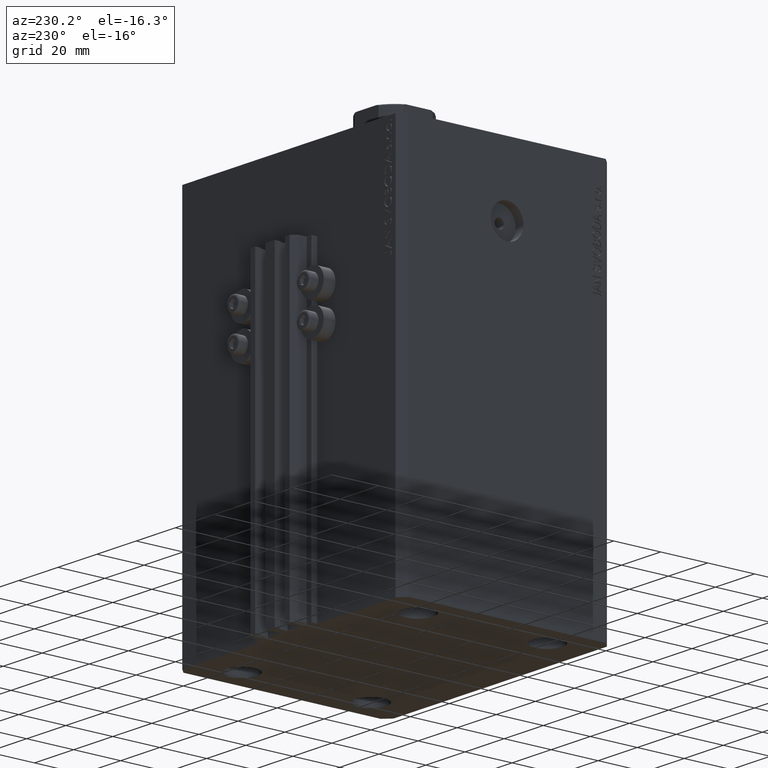
[diagram: clean part render]
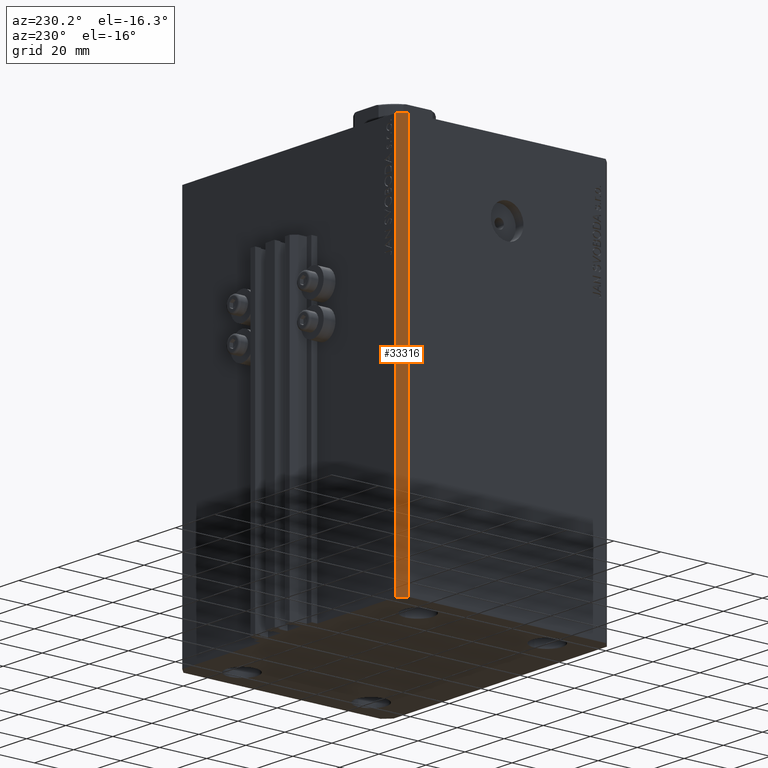
[diagram: same view with one face highlighted and labeled with its STEP entity id]
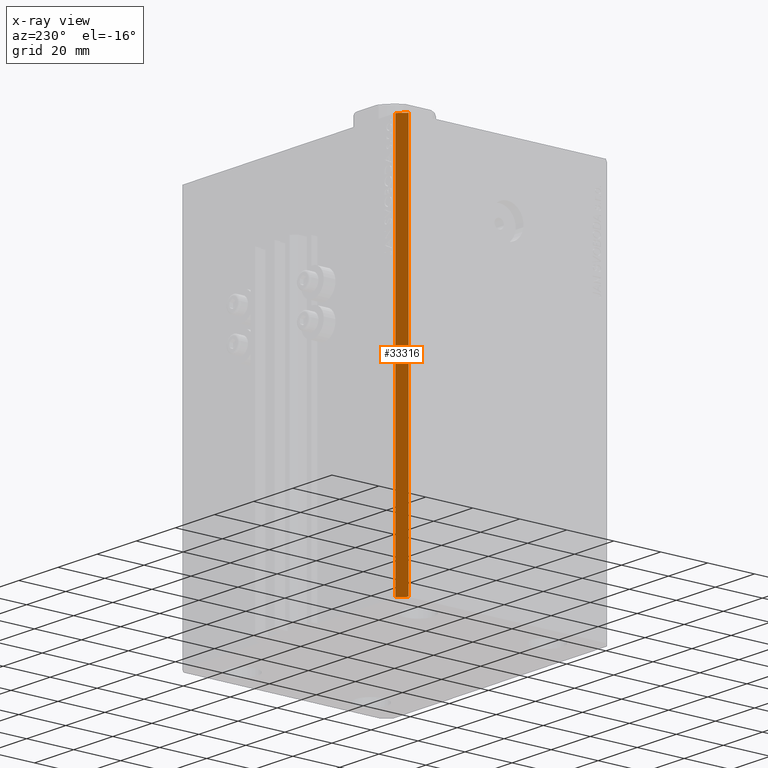
[diagram: x-ray of the same camera — body ghosted, the highlighted face saturated]
A machine part, auxiliary view. The second image highlights one B-rep face of the part: STEP entity #33316.
The next image is the same camera in x-ray: the body ghosted, the highlighted face saturated — about 0% of this face is hidden behind the body in this view.
In plain terms, the highlighted planar face has unit normal (-0.7071, 0.7071, 0).
Its self-contained STEP definition (entity closure, byte-faithful):
#88 = LINE ( 'NONE', #6315, #33269 ) ;
#3546 = CARTESIAN_POINT ( 'NONE',  ( -57.49999999999998579, 42.00000000000000711, -165.0000000000000000 ) ) ;
#4259 = VECTOR ( 'NONE', #22102, 1000.000000000000000 ) ;
#6315 = CARTESIAN_POINT ( 'NONE',  ( -54.49999999999999289, 45.00000000000000000, -165.0000000000000000 ) ) ;
#6510 = ORIENTED_EDGE ( 'NONE', *, *, #12031, .F. ) ;
#7010 = CARTESIAN_POINT ( 'NONE',  ( -54.49999999999999289, 45.00000000000000000, -165.0000000000000000 ) ) ;
#8936 = VERTEX_POINT ( 'NONE', #37753 ) ;
#10462 = DIRECTION ( 'NONE',  ( 0.000000000000000000, 0.000000000000000000, 1.000000000000000000 ) ) ;
#11187 = CARTESIAN_POINT ( 'NONE',  ( -54.49999999999999289, 45.00000000000000000, 0.000000000000000000 ) ) ;
#12023 = VERTEX_POINT ( 'NONE', #36361 ) ;
#12031 = EDGE_CURVE ( 'NONE', #13290, #37810, #88, .T. ) ;
#13129 = EDGE_LOOP ( 'NONE', ( #15597, #6510, #31204, #33322 ) ) ;
#13290 = VERTEX_POINT ( 'NONE', #25554 ) ;
#14153 = PLANE ( 'NONE',  #35932 ) ;
#15597 = ORIENTED_EDGE ( 'NONE', *, *, #21760, .F. ) ;
#15730 = LINE ( 'NONE', #37477, #23027 ) ;
#17729 = FACE_OUTER_BOUND ( 'NONE', #13129, .T. ) ;
#20843 = DIRECTION ( 'NONE',  ( 0.000000000000000000, 0.000000000000000000, 1.000000000000000000 ) ) ;
#21080 = DIRECTION ( 'NONE',  ( -0.7071067811865483499, -0.7071067811865466846, 0.000000000000000000 ) ) ;
#21550 = DIRECTION ( 'NONE',  ( -0.7071067811865466846, 0.7071067811865483499, 0.000000000000000000 ) ) ;
#21653 = LINE ( 'NONE', #3546, #22792 ) ;
#21760 = EDGE_CURVE ( 'NONE', #37810, #8936, #43390, .T. ) ;
#22102 = DIRECTION ( 'NONE',  ( -0.7071067811865483499, -0.7071067811865466846, 0.000000000000000000 ) ) ;
#22792 = VECTOR ( 'NONE', #10462, 1000.000000000000000 ) ;
#23027 = VECTOR ( 'NONE', #44175, 1000.000000000000000 ) ;
#25211 = CARTESIAN_POINT ( 'NONE',  ( -54.49999999999999289, 45.00000000000000000, 0.000000000000000000 ) ) ;
#25554 = CARTESIAN_POINT ( 'NONE',  ( -54.49999999999999289, 45.00000000000000000, -165.0000000000000000 ) ) ;
#26665 = EDGE_CURVE ( 'NONE', #12023, #8936, #21653, .T. ) ;
#31204 = ORIENTED_EDGE ( 'NONE', *, *, #35976, .T. ) ;
#33269 = VECTOR ( 'NONE', #20843, 1000.000000000000000 ) ;
#33316 = ADVANCED_FACE ( 'NONE', ( #17729 ), #14153, .T. ) ;
#33322 = ORIENTED_EDGE ( 'NONE', *, *, #26665, .T. ) ;
#35932 = AXIS2_PLACEMENT_3D ( 'NONE', #7010, #21550, #21080 ) ;
#35976 = EDGE_CURVE ( 'NONE', #13290, #12023, #15730, .T. ) ;
#36361 = CARTESIAN_POINT ( 'NONE',  ( -57.49999999999998579, 42.00000000000000711, -165.0000000000000000 ) ) ;
#37477 = CARTESIAN_POINT ( 'NONE',  ( -54.49999999999999289, 45.00000000000000000, -165.0000000000000000 ) ) ;
#37753 = CARTESIAN_POINT ( 'NONE',  ( -57.49999999999998579, 42.00000000000000711, 0.000000000000000000 ) ) ;
#37810 = VERTEX_POINT ( 'NONE', #11187 ) ;
#43390 = LINE ( 'NONE', #25211, #4259 ) ;
#44175 = DIRECTION ( 'NONE',  ( -0.7071067811865483499, -0.7071067811865466846, 0.000000000000000000 ) ) ;